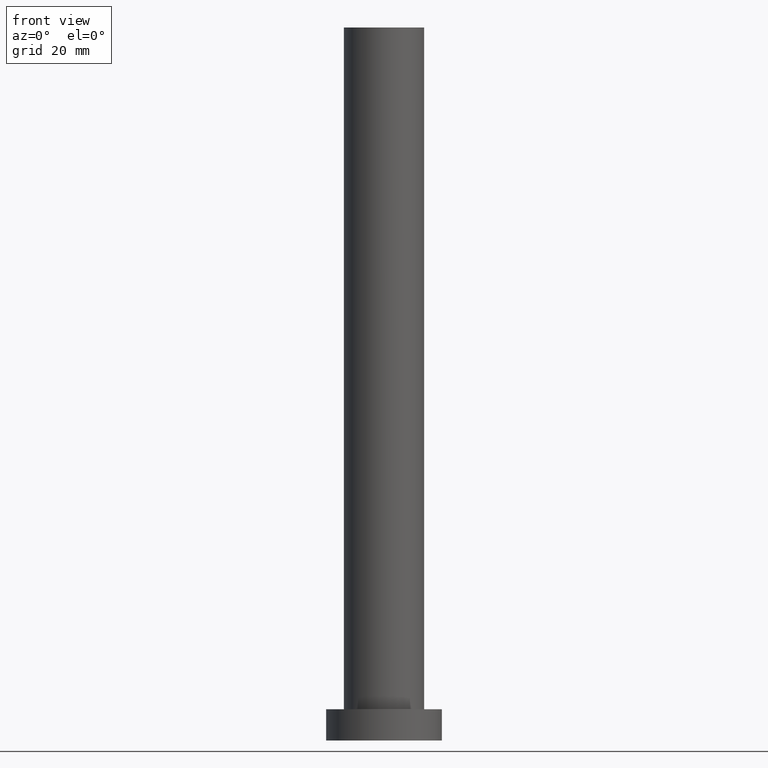
[diagram: clean part render]
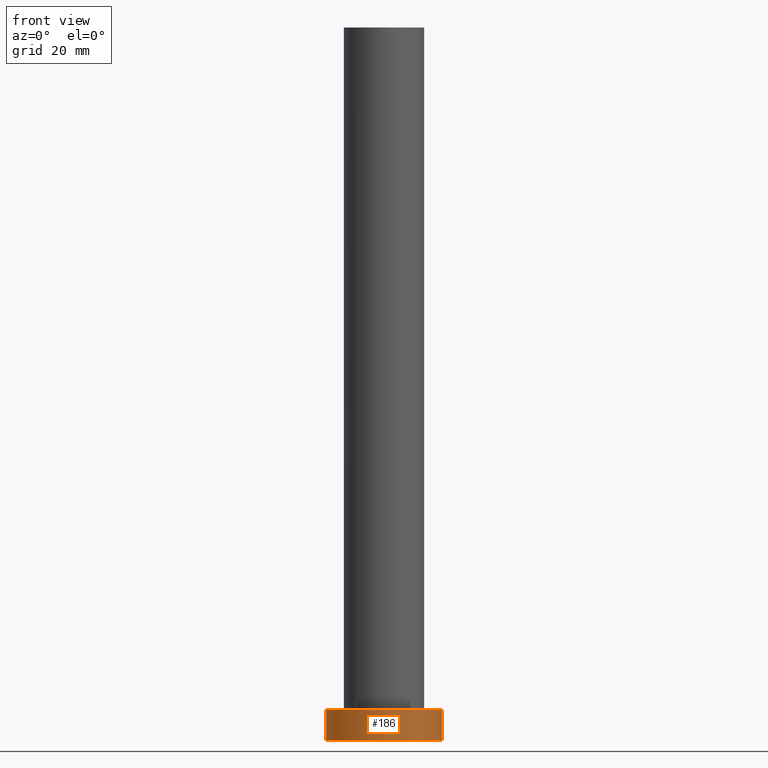
[diagram: same view with one face highlighted and labeled with its STEP entity id]
A machine part, front view. The second image highlights one B-rep face of the part: STEP entity #186.
In plain terms, the highlighted cylindrical surface (partial cylindrical patch) has radius 13 mm, axis along (-0, -0, -1).
Its self-contained STEP definition (entity closure, byte-faithful):
#5 = VECTOR ( 'NONE', #210, 1000.000000000000000 ) ;
#7 = ORIENTED_EDGE ( 'NONE', *, *, #34, .T. ) ;
#10 = AXIS2_PLACEMENT_3D ( 'NONE', #92, #33, #181 ) ;
#13 = CARTESIAN_POINT ( 'NONE',  ( 0.000000000000000000, 0.000000000000000000, 7.000000000000000000 ) ) ;
#25 = CIRCLE ( 'NONE', #175, 13.00000000000000178 ) ;
#29 = FACE_OUTER_BOUND ( 'NONE', #148, .T. ) ;
#30 = ORIENTED_EDGE ( 'NONE', *, *, #234, .F. ) ;
#33 = DIRECTION ( 'NONE',  ( 0.000000000000000000, 0.000000000000000000, 1.000000000000000000 ) ) ;
#34 = EDGE_CURVE ( 'NONE', #68, #102, #205, .T. ) ;
#38 = CARTESIAN_POINT ( 'NONE',  ( 13.00000000000000178, 1.592040838891559293E-15, 7.000000000000000000 ) ) ;
#44 = DIRECTION ( 'NONE',  ( -1.000000000000000000, 0.000000000000000000, 0.000000000000000000 ) ) ;
#68 = VERTEX_POINT ( 'NONE', #237 ) ;
#82 = DIRECTION ( 'NONE',  ( 1.000000000000000000, 0.000000000000000000, 0.000000000000000000 ) ) ;
#87 = VERTEX_POINT ( 'NONE', #38 ) ;
#92 = CARTESIAN_POINT ( 'NONE',  ( 0.000000000000000000, 0.000000000000000000, 0.000000000000000000 ) ) ;
#102 = VERTEX_POINT ( 'NONE', #199 ) ;
#104 = CYLINDRICAL_SURFACE ( 'NONE', #156, 13.00000000000000178 ) ;
#112 = ORIENTED_EDGE ( 'NONE', *, *, #209, .F. ) ;
#128 = VERTEX_POINT ( 'NONE', #135 ) ;
#134 = VECTOR ( 'NONE', #222, 1000.000000000000000 ) ;
#135 = CARTESIAN_POINT ( 'NONE',  ( -13.00000000000000178, 0.000000000000000000, 7.000000000000000000 ) ) ;
#140 = EDGE_CURVE ( 'NONE', #128, #68, #159, .T. ) ;
#142 = ORIENTED_EDGE ( 'NONE', *, *, #140, .T. ) ;
#144 = DIRECTION ( 'NONE',  ( -0.000000000000000000, -0.000000000000000000, -1.000000000000000000 ) ) ;
#148 = EDGE_LOOP ( 'NONE', ( #30, #112, #142, #7 ) ) ;
#156 = AXIS2_PLACEMENT_3D ( 'NONE', #189, #144, #44 ) ;
#159 = LINE ( 'NONE', #242, #134 ) ;
#175 = AXIS2_PLACEMENT_3D ( 'NONE', #13, #225, #82 ) ;
#181 = DIRECTION ( 'NONE',  ( 1.000000000000000000, 0.000000000000000000, 0.000000000000000000 ) ) ;
#185 = CARTESIAN_POINT ( 'NONE',  ( 13.00000000000000178, 1.592040838891559293E-15, 7.000000000000000000 ) ) ;
#186 = ADVANCED_FACE ( 'NONE', ( #29 ), #104, .T. ) ;
#189 = CARTESIAN_POINT ( 'NONE',  ( 0.000000000000000000, 0.000000000000000000, 7.000000000000000000 ) ) ;
#199 = CARTESIAN_POINT ( 'NONE',  ( 13.00000000000000178, 1.592040838891559293E-15, 0.000000000000000000 ) ) ;
#204 = LINE ( 'NONE', #185, #5 ) ;
#205 = CIRCLE ( 'NONE', #10, 13.00000000000000178 ) ;
#209 = EDGE_CURVE ( 'NONE', #128, #87, #25, .T. ) ;
#210 = DIRECTION ( 'NONE',  ( -0.000000000000000000, -0.000000000000000000, -1.000000000000000000 ) ) ;
#222 = DIRECTION ( 'NONE',  ( -0.000000000000000000, -0.000000000000000000, -1.000000000000000000 ) ) ;
#225 = DIRECTION ( 'NONE',  ( 0.000000000000000000, 0.000000000000000000, 1.000000000000000000 ) ) ;
#234 = EDGE_CURVE ( 'NONE', #87, #102, #204, .T. ) ;
#237 = CARTESIAN_POINT ( 'NONE',  ( -13.00000000000000178, 0.000000000000000000, 0.000000000000000000 ) ) ;
#242 = CARTESIAN_POINT ( 'NONE',  ( -13.00000000000000178, 0.000000000000000000, 7.000000000000000000 ) ) ;